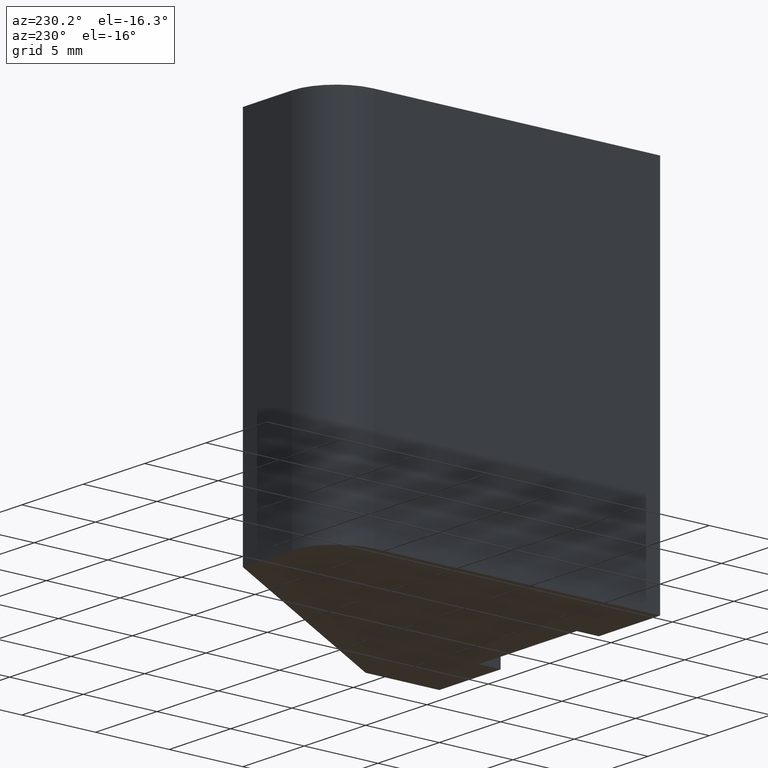
[diagram: clean part render]
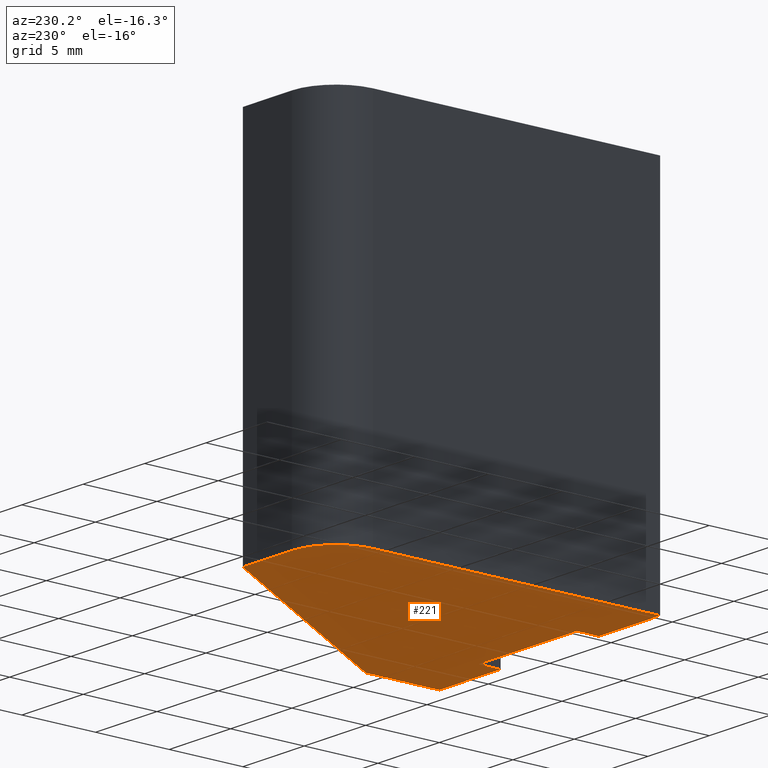
[diagram: same view with one face highlighted and labeled with its STEP entity id]
A machine part, auxiliary view. The second image highlights one B-rep face of the part: STEP entity #221.
In plain terms, the highlighted planar face has unit normal (0, 0, 1).
Its self-contained STEP definition (entity closure, byte-faithful):
#18=FACE_OUTER_BOUND('',#30,.T.);
#30=EDGE_LOOP('',(#150,#151,#152,#153,#154,#155,#156,#157,#158,#159));
#42=CIRCLE('',#254,3.00000000000001);
#44=LINE('',#329,#72);
#45=LINE('',#331,#73);
#46=LINE('',#333,#74);
#47=LINE('',#335,#75);
#48=LINE('',#337,#76);
#49=LINE('',#339,#77);
#50=LINE('',#341,#78);
#51=LINE('',#345,#79);
#52=LINE('',#346,#80);
#72=VECTOR('',#271,10.);
#73=VECTOR('',#272,10.);
#74=VECTOR('',#273,10.);
#75=VECTOR('',#274,10.);
#76=VECTOR('',#275,10.);
#77=VECTOR('',#276,10.);
#78=VECTOR('',#277,10.);
#79=VECTOR('',#280,10.);
#80=VECTOR('',#281,10.);
#100=VERTEX_POINT('',#327);
#101=VERTEX_POINT('',#328);
#102=VERTEX_POINT('',#330);
#103=VERTEX_POINT('',#332);
#104=VERTEX_POINT('',#334);
#105=VERTEX_POINT('',#336);
#106=VERTEX_POINT('',#338);
#107=VERTEX_POINT('',#340);
#108=VERTEX_POINT('',#342);
#109=VERTEX_POINT('',#344);
#120=EDGE_CURVE('',#100,#101,#44,.T.);
#121=EDGE_CURVE('',#102,#100,#45,.T.);
#122=EDGE_CURVE('',#103,#102,#46,.T.);
#123=EDGE_CURVE('',#104,#103,#47,.T.);
#124=EDGE_CURVE('',#105,#104,#48,.T.);
#125=EDGE_CURVE('',#106,#105,#49,.T.);
#126=EDGE_CURVE('',#107,#106,#50,.T.);
#127=EDGE_CURVE('',#108,#107,#42,.T.);
#128=EDGE_CURVE('',#109,#108,#51,.T.);
#129=EDGE_CURVE('',#101,#109,#52,.T.);
#150=ORIENTED_EDGE('',*,*,#120,.F.);
#151=ORIENTED_EDGE('',*,*,#121,.F.);
#152=ORIENTED_EDGE('',*,*,#122,.F.);
#153=ORIENTED_EDGE('',*,*,#123,.F.);
#154=ORIENTED_EDGE('',*,*,#124,.F.);
#155=ORIENTED_EDGE('',*,*,#125,.F.);
#156=ORIENTED_EDGE('',*,*,#126,.F.);
#157=ORIENTED_EDGE('',*,*,#127,.F.);
#158=ORIENTED_EDGE('',*,*,#128,.F.);
#159=ORIENTED_EDGE('',*,*,#129,.F.);
#210=PLANE('',#253);
#221=ADVANCED_FACE('',(#18),#210,.F.);
#253=AXIS2_PLACEMENT_3D('',#326,#269,#270);
#254=AXIS2_PLACEMENT_3D('',#343,#278,#279);
#269=DIRECTION('center_axis',(0.,0.,1.));
#270=DIRECTION('ref_axis',(1.,0.,0.));
#271=DIRECTION('',(-2.22044604925031E-16,1.,0.));
#272=DIRECTION('',(1.,-4.93038065763132E-32,0.));
#273=DIRECTION('',(0.,-1.,0.));
#274=DIRECTION('',(1.,0.,0.));
#275=DIRECTION('',(0.,1.,0.));
#276=DIRECTION('',(1.,0.,0.));
#277=DIRECTION('',(0.,-1.,0.));
#278=DIRECTION('center_axis',(0.,0.,1.));
#279=DIRECTION('ref_axis',(0.,-1.,0.));
#280=DIRECTION('',(-1.,1.11022302462516E-15,0.));
#281=DIRECTION('',(-0.532171545218346,0.846636549211005,0.));
#326=CARTESIAN_POINT('Origin',(-1.48548663187218,9.23831091868498,-12.5));
#327=CARTESIAN_POINT('',(9.,0.,-12.5));
#328=CARTESIAN_POINT('',(9.,5.,-12.5));
#329=CARTESIAN_POINT('',(9.,5.,-12.5));
#330=CARTESIAN_POINT('',(4.,2.46519032881566E-31,-12.5));
#331=CARTESIAN_POINT('',(9.,0.,-12.5));
#332=CARTESIAN_POINT('',(4.,1.5,-12.5));
#333=CARTESIAN_POINT('',(4.,2.46519032881566E-31,-12.5));
#334=CARTESIAN_POINT('',(-4.,1.5,-12.5));
#335=CARTESIAN_POINT('',(4.,1.5,-12.5));
#336=CARTESIAN_POINT('',(-4.,0.,-12.5));
#337=CARTESIAN_POINT('',(-4.,1.5,-12.5));
#338=CARTESIAN_POINT('',(-9.,0.,-12.5));
#339=CARTESIAN_POINT('',(-4.,0.,-12.5));
#340=CARTESIAN_POINT('',(-9.,19.5,-12.5));
#341=CARTESIAN_POINT('',(-9.,0.,-12.5));
#342=CARTESIAN_POINT('',(-6.,22.5,-12.5));
#343=CARTESIAN_POINT('Origin',(-6.,19.5,-12.5));
#344=CARTESIAN_POINT('',(-2.,22.5,-12.5));
#345=CARTESIAN_POINT('',(-6.,22.5,-12.5));
#346=CARTESIAN_POINT('',(-2.,22.5,-12.5));